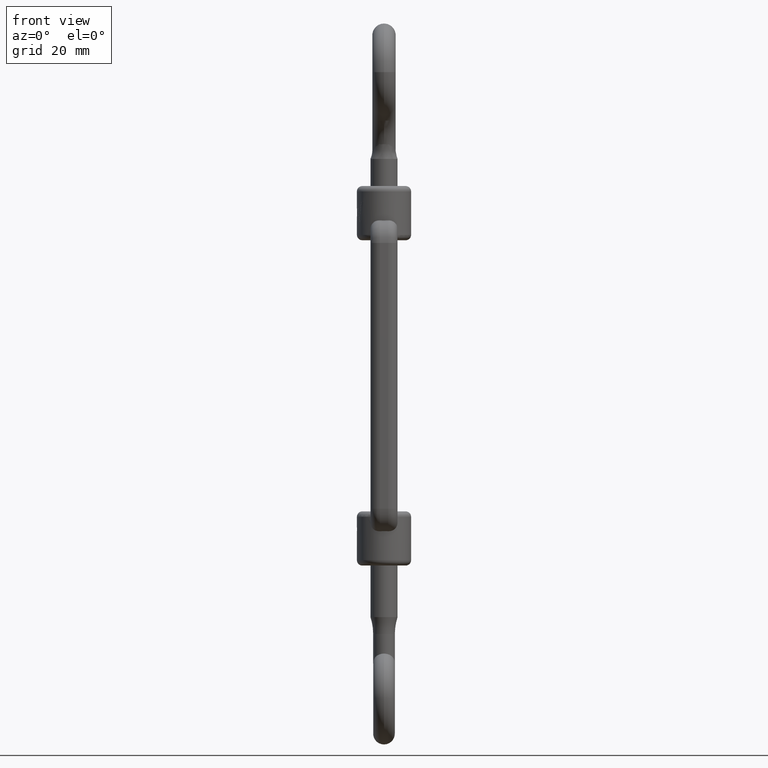
[diagram: clean part render]
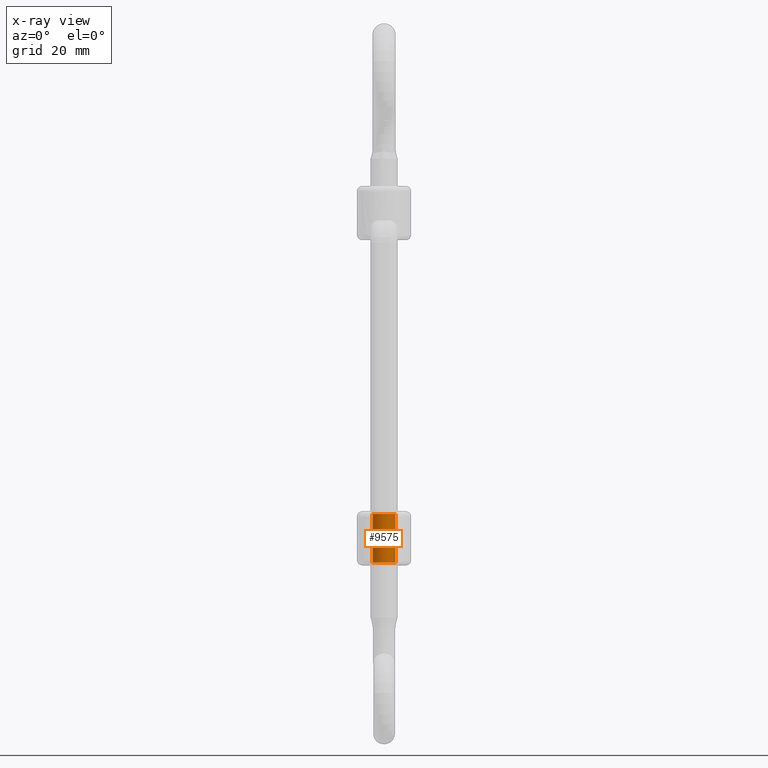
[diagram: x-ray — body ghosted, one internal face saturated and labeled with its STEP entity id]
A machine part, front view, then the same camera in x-ray: the body is ghosted and one INTERNAL B-rep face — a face not visible from any outside direction — is saturated and labeled: STEP entity #9575.
In plain terms, the highlighted cylindrical surface (edge-blend (fillet) strip) has radius 2.1 mm, axis along (-0, -0, -1).
Its self-contained STEP definition (entity closure, byte-faithful):
#672 = ORIENTED_EDGE ( 'NONE', *, *, #8811, .T. ) ;
#746 = CARTESIAN_POINT ( 'NONE',  ( 0.0000000000000000000, 0.0000000000000000000, -35.00000000000000000 ) ) ;
#2084 = CIRCLE ( 'NONE', #4683, 2.099999999999997400 ) ;
#2483 = FACE_OUTER_BOUND ( 'NONE', #6402, .T. ) ;
#4683 = AXIS2_PLACEMENT_3D ( 'NONE', #4805, #7704, #18477 ) ;
#4805 = CARTESIAN_POINT ( 'NONE',  ( 0.0000000000000000000, 0.0000000000000000000, -25.49999999999998900 ) ) ;
#5632 = EDGE_CURVE ( 'NONE', #8027, #13233, #2084, .T. ) ;
#6402 = EDGE_LOOP ( 'NONE', ( #6484, #672, #19055, #18748 ) ) ;
#6484 = ORIENTED_EDGE ( 'NONE', *, *, #5632, .T. ) ;
#6496 = DIRECTION ( 'NONE',  ( 0.0000000000000000000, 0.0000000000000000000, -1.000000000000000000 ) ) ;
#6697 = CARTESIAN_POINT ( 'NONE',  ( -2.099999999999997400, 0.0000000000000000000, -35.00000000000000000 ) ) ;
#7572 = CARTESIAN_POINT ( 'NONE',  ( 2.099999999999997400, 2.571758278209438500E-016, -34.49999999999999300 ) ) ;
#7704 = DIRECTION ( 'NONE',  ( -0.0000000000000000000, -0.0000000000000000000, 1.000000000000000000 ) ) ;
#7813 = DIRECTION ( 'NONE',  ( 1.000000000000000000, 0.0000000000000000000, 0.0000000000000000000 ) ) ;
#8027 = VERTEX_POINT ( 'NONE', #12224 ) ;
#8291 = DIRECTION ( 'NONE',  ( -0.0000000000000000000, -0.0000000000000000000, -1.000000000000000000 ) ) ;
#8500 = AXIS2_PLACEMENT_3D ( 'NONE', #746, #8291, #12629 ) ;
#8586 = CYLINDRICAL_SURFACE ( 'NONE', #8500, 2.099999999999997400 ) ;
#8811 = EDGE_CURVE ( 'NONE', #13233, #18665, #9073, .T. ) ;
#9073 = LINE ( 'NONE', #15495, #11662 ) ;
#9227 = CIRCLE ( 'NONE', #10302, 2.099999999999997400 ) ;
#9575 = ADVANCED_FACE ( 'NONE', ( #2483 ), #8586, .F. ) ;
#10302 = AXIS2_PLACEMENT_3D ( 'NONE', #15505, #6496, #7813 ) ;
#11097 = CARTESIAN_POINT ( 'NONE',  ( 2.099999999999997400, 2.571758278209438500E-016, -25.49999999999998900 ) ) ;
#11558 = LINE ( 'NONE', #6697, #14150 ) ;
#11662 = VECTOR ( 'NONE', #17069, 1000.000000000000000 ) ;
#12100 = EDGE_CURVE ( 'NONE', #18665, #18806, #9227, .T. ) ;
#12224 = CARTESIAN_POINT ( 'NONE',  ( -2.099999999999997400, 0.0000000000000000000, -25.49999999999998900 ) ) ;
#12620 = CARTESIAN_POINT ( 'NONE',  ( -2.099999999999997400, 0.0000000000000000000, -34.49999999999999300 ) ) ;
#12629 = DIRECTION ( 'NONE',  ( -1.000000000000000000, 0.0000000000000000000, 0.0000000000000000000 ) ) ;
#13233 = VERTEX_POINT ( 'NONE', #11097 ) ;
#14150 = VECTOR ( 'NONE', #15571, 1000.000000000000000 ) ;
#15102 = EDGE_CURVE ( 'NONE', #8027, #18806, #11558, .T. ) ;
#15495 = CARTESIAN_POINT ( 'NONE',  ( 2.099999999999997400, 2.571758278209438500E-016, -35.00000000000000000 ) ) ;
#15505 = CARTESIAN_POINT ( 'NONE',  ( 0.0000000000000000000, 0.0000000000000000000, -34.49999999999999300 ) ) ;
#15571 = DIRECTION ( 'NONE',  ( -0.0000000000000000000, -0.0000000000000000000, -1.000000000000000000 ) ) ;
#17069 = DIRECTION ( 'NONE',  ( -0.0000000000000000000, -0.0000000000000000000, -1.000000000000000000 ) ) ;
#18477 = DIRECTION ( 'NONE',  ( -1.000000000000000000, 0.0000000000000000000, 0.0000000000000000000 ) ) ;
#18665 = VERTEX_POINT ( 'NONE', #7572 ) ;
#18748 = ORIENTED_EDGE ( 'NONE', *, *, #15102, .F. ) ;
#18806 = VERTEX_POINT ( 'NONE', #12620 ) ;
#19055 = ORIENTED_EDGE ( 'NONE', *, *, #12100, .T. ) ;